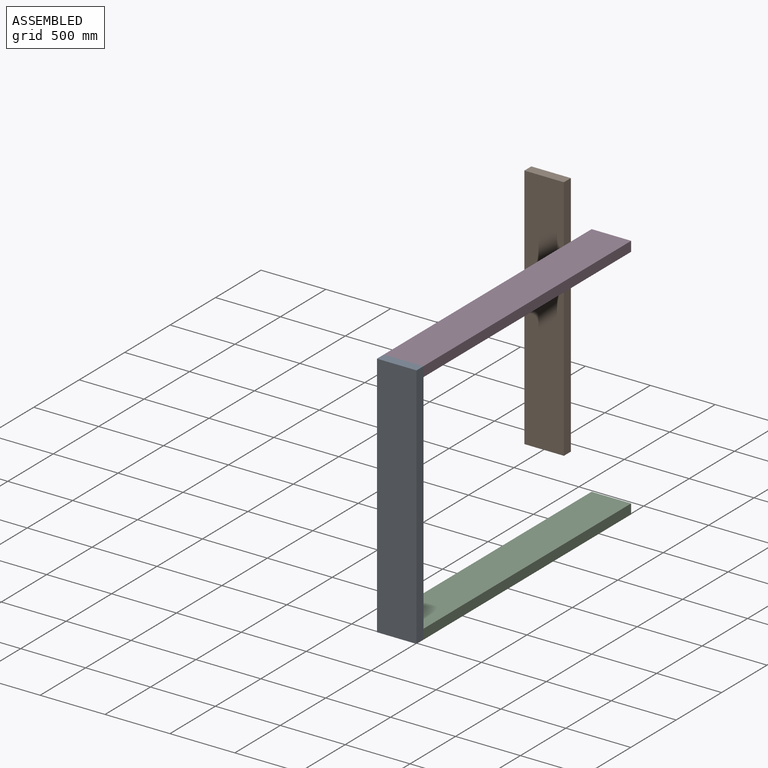
[diagram: assembled view]
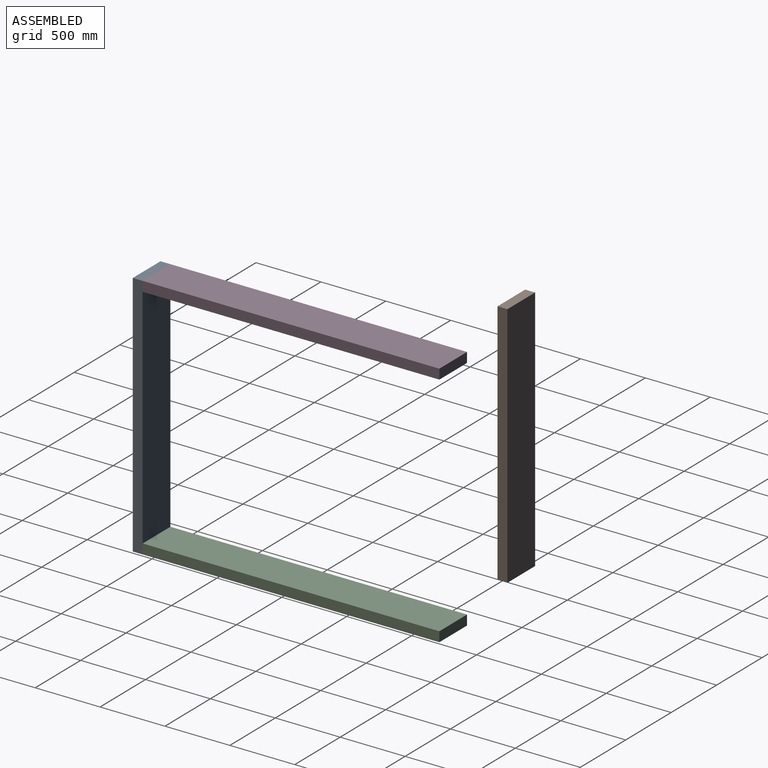
[diagram: assembled view, second angle]
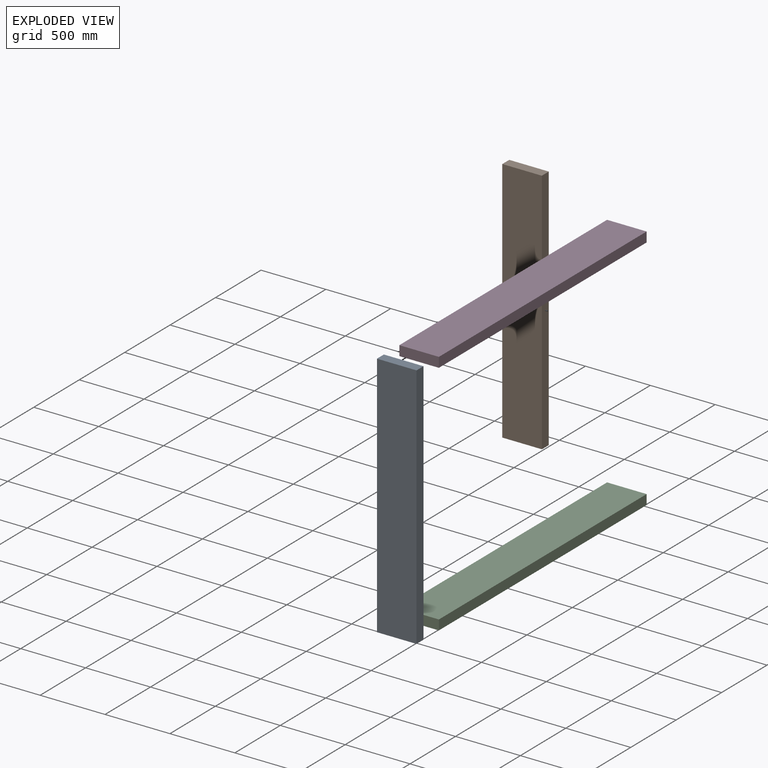
[diagram: exploded view]
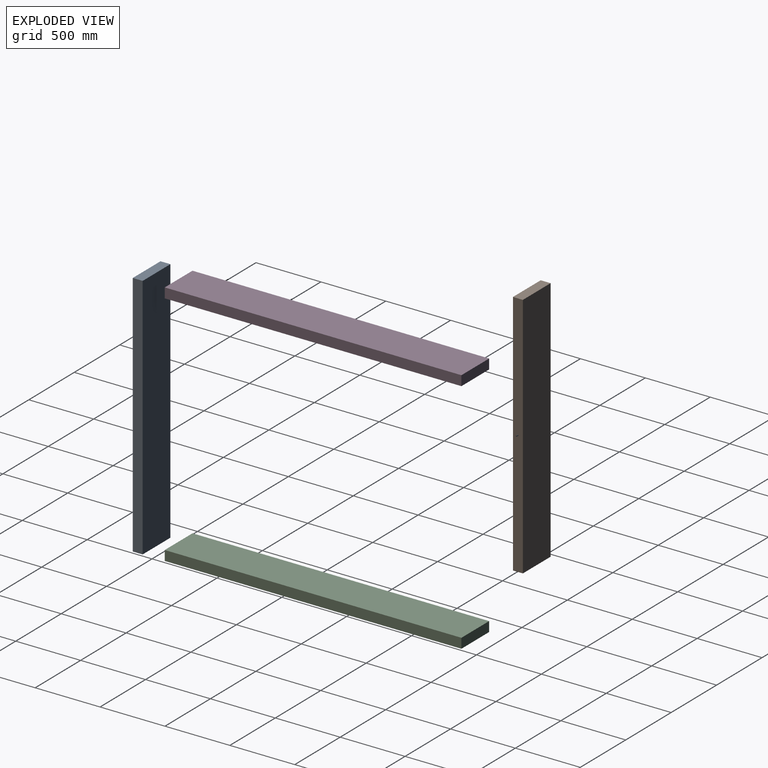
[diagram: exploded view, second angle]
ASSEMBLY  parts=4 mates=2
PART A: 6 faces, bbox 304.8x76.2x1905 mm
  f0: plane 1905x76.2mm, normal (-1,0,0), area 145161mm2, adj f1,f3,f4,f5
  f1: plane 304.8x76.2mm, normal (0,0,-1), area 23225.8mm2, adj f0,f2,f4,f5
  f2: plane 1905x76.2mm, normal (1,0,0), area 145161mm2, adj f1,f3,f4,f5
  f3: plane 304.8x76.2mm, normal (0,0,1), area 23225.8mm2, adj f0,f2,f4,f5
  f4: plane 1905x304.8mm, normal (0,-1,0), area 580644mm2, adj f0,f1,f2,f3
  f5: plane 1905x304.8mm, normal (0,1,0), area 580644mm2, adj f0,f1,f2,f3
PART B: same geometry as A
PART C: 6 faces, bbox 304.8x76.2x2286 mm
  f0: plane 2286x76.2mm, normal (-1,0,0), area 174193.2mm2, adj f1,f3,f4,f5
  f1: plane 304.8x76.2mm, normal (0,0,-1), area 23225.8mm2, adj f0,f2,f4,f5
  f2: plane 2286x76.2mm, normal (1,0,0), area 174193.2mm2, adj f1,f3,f4,f5
  f3: plane 304.8x76.2mm, normal (0,0,1), area 23225.8mm2, adj f0,f2,f4,f5
  f4: plane 2286x304.8mm, normal (0,-1,0), area 696772.8mm2, adj f0,f1,f2,f3
  f5: plane 2286x304.8mm, normal (0,1,0), area 696772.8mm2, adj f0,f1,f2,f3
PART D: same geometry as C
PLACE A t=(-83.07,-61.34,-20.07)mm fixed
PLACE B t=(-641.38,2358.19,216.52)mm
PLACE C rot(axis=(0,0.71,0.71),180deg) t=(-83.07,1119.76,-934.47)mm
PLACE D rot(axis=(-1,0,0),90deg) t=(-83.07,1119.76,894.33)mm
MATE fastened C.f1 <-> A.f5  axis (0,-1,0) through (-83.07,-23.24,-972.57)mm
MATE fastened D.f1 <-> A.f5  axis (0,-1,0) through (-83.07,-23.24,932.43)mm
